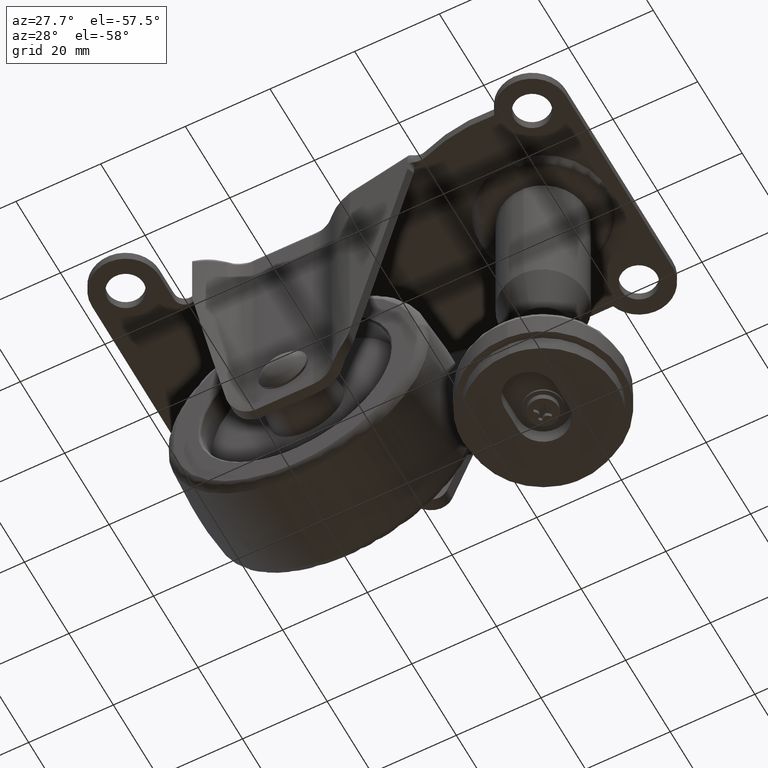
[diagram: clean part render]
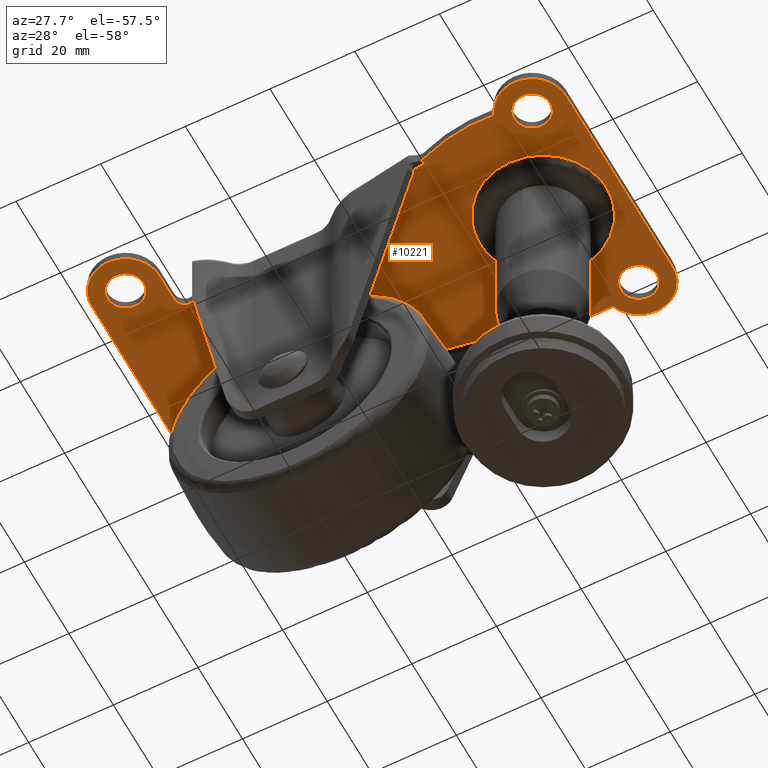
[diagram: same view with one face highlighted and labeled with its STEP entity id]
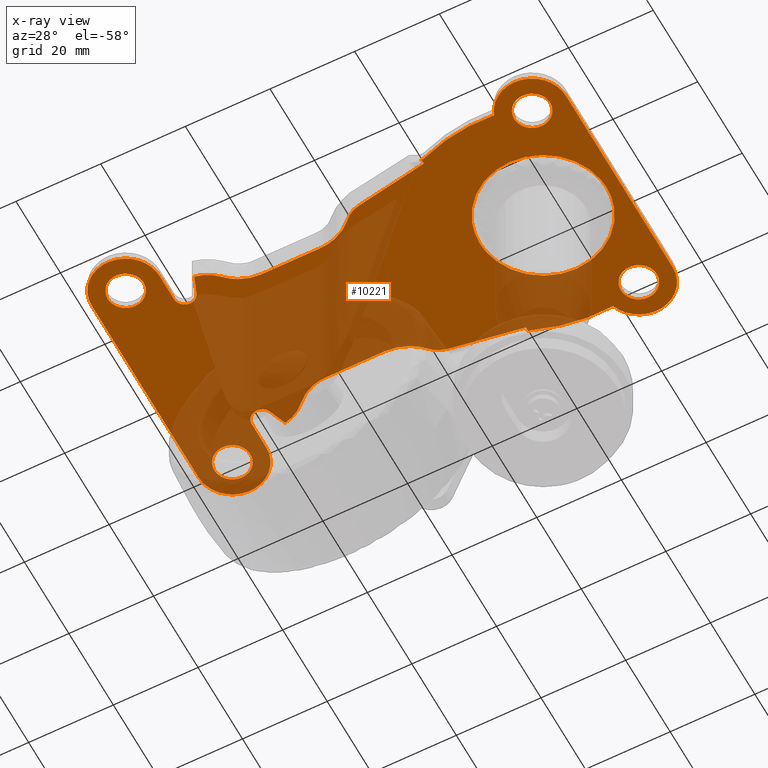
[diagram: x-ray of the same camera — body ghosted, the highlighted face saturated]
A machine part, auxiliary view. The second image highlights one B-rep face of the part: STEP entity #10221.
The next image is the same camera in x-ray: the body ghosted, the highlighted face saturated — about 45% of this face is hidden behind the body in this view.
In plain terms, the highlighted face is a freeform B-spline surface patch.
Its self-contained STEP definition (entity closure, byte-faithful):
#7500=CARTESIAN_POINT('',(-33.740544805826559,28.242076960500931,47.200004000000000));
#7501=VERTEX_POINT('',#7500);
#7507=CARTESIAN_POINT('',(-29.750000000000000,24.000003999999748,47.200004000000000));
#7508=VERTEX_POINT('',#7507);
#7509=CARTESIAN_POINT('',(-29.750000000000000,24.000003999999748,47.200004000000000));
#7510=CARTESIAN_POINT('',(-29.750000000000004,27.998005821910553,47.200003999999986));
#7511=CARTESIAN_POINT('',(-33.740544805826545,28.242076960501073,47.200004000000000));
#7519=(BOUNDED_CURVE()B_SPLINE_CURVE(2,(#7509,#7510,#7511),.UNSPECIFIED.,.F.,.U.)B_SPLINE_CURVE_WITH_KNOTS((3,3),(0.500000000000000,0.739333006937805),.UNSPECIFIED.)CURVE()GEOMETRIC_REPRESENTATION_ITEM()RATIONAL_B_SPLINE_CURVE((1.0,0.719603940918736,0.976072137464906))REPRESENTATION_ITEM(''));
#7520=EDGE_CURVE('',#7508,#7501,#7519,.T.);
#7522=CARTESIAN_POINT('',(-34.259455194173441,19.757931039498580,47.200004000000000));
#7523=VERTEX_POINT('',#7522);
#7524=CARTESIAN_POINT('',(-34.259455194173448,19.757931039498580,47.200004000000000));
#7525=CARTESIAN_POINT('',(-34.129848693053631,19.750003999999752,47.200004000000000));
#7526=CARTESIAN_POINT('',(-34.0,19.750003999999748,47.200004000000000));
#7527=CARTESIAN_POINT('',(-29.750000000000004,19.750003999999745,47.200003999999986));
#7528=CARTESIAN_POINT('',(-29.750000000000000,24.000003999999748,47.200004000000000));
#7536=(BOUNDED_CURVE()B_SPLINE_CURVE(2,(#7524,#7525,#7526,#7527,#7528),.UNSPECIFIED.,.F.,.U.)B_SPLINE_CURVE_WITH_KNOTS((3,2,3),(0.239333006937805,0.250000000000000,0.500000000000000),.UNSPECIFIED.)CURVE()GEOMETRIC_REPRESENTATION_ITEM()RATIONAL_B_SPLINE_CURVE((0.976072137464906,0.987502840267811,1.0,0.707106781186548,1.0))REPRESENTATION_ITEM(''));
#7537=EDGE_CURVE('',#7523,#7508,#7536,.T.);
#7581=CARTESIAN_POINT('',(-38.250000000000007,24.000003999999748,47.200004000000000));
#7582=VERTEX_POINT('',#7581);
#7583=CARTESIAN_POINT('',(-38.250000000000007,24.000003999999748,47.200004000000000));
#7584=CARTESIAN_POINT('',(-38.249999999999993,20.002002178088944,47.200003999999979));
#7585=CARTESIAN_POINT('',(-34.259455194173434,19.757931039498434,47.200004000000000));
#7593=(BOUNDED_CURVE()B_SPLINE_CURVE(2,(#7583,#7584,#7585),.UNSPECIFIED.,.F.,.U.)B_SPLINE_CURVE_WITH_KNOTS((3,3),(0.0,0.239333006937805),.UNSPECIFIED.)CURVE()GEOMETRIC_REPRESENTATION_ITEM()RATIONAL_B_SPLINE_CURVE((1.0,0.719603940918736,0.976072137464906))REPRESENTATION_ITEM(''));
#7594=EDGE_CURVE('',#7582,#7523,#7593,.T.);
#7596=CARTESIAN_POINT('',(-33.740544805826552,28.242076960500924,47.200004000000007));
#7597=CARTESIAN_POINT('',(-33.870151306946376,28.250003999999752,47.200004000000007));
#7598=CARTESIAN_POINT('',(-34.0,28.250003999999748,47.200004000000000));
#7599=CARTESIAN_POINT('',(-38.250000000000007,28.250003999999752,47.200003999999986));
#7600=CARTESIAN_POINT('',(-38.250000000000007,24.000003999999748,47.200004000000000));
#7608=(BOUNDED_CURVE()B_SPLINE_CURVE(2,(#7596,#7597,#7598,#7599,#7600),.UNSPECIFIED.,.F.,.U.)B_SPLINE_CURVE_WITH_KNOTS((3,2,3),(0.739333006937804,0.750000000000000,1.0),.UNSPECIFIED.)CURVE()GEOMETRIC_REPRESENTATION_ITEM()RATIONAL_B_SPLINE_CURVE((0.976072137464906,0.987502840267811,1.0,0.707106781186548,1.0))REPRESENTATION_ITEM(''));
#7609=EDGE_CURVE('',#7501,#7582,#7608,.T.);
#7682=CARTESIAN_POINT('',(-33.740544805826559,-19.757927039498821,47.200004000000000));
#7683=VERTEX_POINT('',#7682);
#7689=CARTESIAN_POINT('',(-29.750000000000000,-24.0,47.200004000000000));
#7690=VERTEX_POINT('',#7689);
#7691=CARTESIAN_POINT('',(-29.750000000000000,-24.0,47.200004000000000));
#7692=CARTESIAN_POINT('',(-29.750000000000004,-20.001998178089195,47.200003999999986));
#7693=CARTESIAN_POINT('',(-33.740544805826545,-19.757927039498686,47.200004000000000));
#7701=(BOUNDED_CURVE()B_SPLINE_CURVE(2,(#7691,#7692,#7693),.UNSPECIFIED.,.F.,.U.)B_SPLINE_CURVE_WITH_KNOTS((3,3),(0.500000000000000,0.739333006937805),.UNSPECIFIED.)CURVE()GEOMETRIC_REPRESENTATION_ITEM()RATIONAL_B_SPLINE_CURVE((1.0,0.719603940918736,0.976072137464906))REPRESENTATION_ITEM(''));
#7702=EDGE_CURVE('',#7690,#7683,#7701,.T.);
#7704=CARTESIAN_POINT('',(-34.259455194173441,-28.242072960501179,47.200004000000000));
#7705=VERTEX_POINT('',#7704);
#7706=CARTESIAN_POINT('',(-34.259455194173448,-28.242072960501179,47.200004000000000));
#7707=CARTESIAN_POINT('',(-34.129848693053631,-28.250000000000000,47.200004000000000));
#7708=CARTESIAN_POINT('',(-34.0,-28.250000000000000,47.200004000000000));
#7709=CARTESIAN_POINT('',(-29.750000000000004,-28.250000000000000,47.200003999999986));
#7710=CARTESIAN_POINT('',(-29.750000000000000,-24.0,47.200004000000000));
#7718=(BOUNDED_CURVE()B_SPLINE_CURVE(2,(#7706,#7707,#7708,#7709,#7710),.UNSPECIFIED.,.F.,.U.)B_SPLINE_CURVE_WITH_KNOTS((3,2,3),(0.239333006937805,0.250000000000000,0.500000000000000),.UNSPECIFIED.)CURVE()GEOMETRIC_REPRESENTATION_ITEM()RATIONAL_B_SPLINE_CURVE((0.976072137464906,0.987502840267811,1.0,0.707106781186548,1.0))REPRESENTATION_ITEM(''));
#7719=EDGE_CURVE('',#7705,#7690,#7718,.T.);
#7763=CARTESIAN_POINT('',(-38.250000000000007,-24.0,47.200004000000000));
#7764=VERTEX_POINT('',#7763);
#7765=CARTESIAN_POINT('',(-38.250000000000007,-24.0,47.200004000000000));
#7766=CARTESIAN_POINT('',(-38.249999999999993,-27.998001821910815,47.200003999999979));
#7767=CARTESIAN_POINT('',(-34.259455194173434,-28.242072960501311,47.200004000000000));
#7775=(BOUNDED_CURVE()B_SPLINE_CURVE(2,(#7765,#7766,#7767),.UNSPECIFIED.,.F.,.U.)B_SPLINE_CURVE_WITH_KNOTS((3,3),(0.0,0.239333006937805),.UNSPECIFIED.)CURVE()GEOMETRIC_REPRESENTATION_ITEM()RATIONAL_B_SPLINE_CURVE((1.0,0.719603940918736,0.976072137464906))REPRESENTATION_ITEM(''));
#7776=EDGE_CURVE('',#7764,#7705,#7775,.T.);
#7778=CARTESIAN_POINT('',(-33.740544805826552,-19.757927039498824,47.200004000000007));
#7779=CARTESIAN_POINT('',(-33.870151306946376,-19.750000000000004,47.200004000000007));
#7780=CARTESIAN_POINT('',(-34.0,-19.750000000000000,47.200004000000000));
#7781=CARTESIAN_POINT('',(-38.250000000000007,-19.749999999999993,47.200003999999986));
#7782=CARTESIAN_POINT('',(-38.250000000000007,-24.0,47.200004000000000));
#7790=(BOUNDED_CURVE()B_SPLINE_CURVE(2,(#7778,#7779,#7780,#7781,#7782),.UNSPECIFIED.,.F.,.U.)B_SPLINE_CURVE_WITH_KNOTS((3,2,3),(0.739333006937804,0.750000000000000,1.0),.UNSPECIFIED.)CURVE()GEOMETRIC_REPRESENTATION_ITEM()RATIONAL_B_SPLINE_CURVE((0.976072137464906,0.987502840267811,1.0,0.707106781186548,1.0))REPRESENTATION_ITEM(''));
#7791=EDGE_CURVE('',#7683,#7764,#7790,.T.);
#7864=CARTESIAN_POINT('',(62.259455194173441,-19.757927039498821,47.200004000000000));
#7865=VERTEX_POINT('',#7864);
#7871=CARTESIAN_POINT('',(66.250000000000000,-24.0,47.200004000000000));
#7872=VERTEX_POINT('',#7871);
#7873=CARTESIAN_POINT('',(66.250000000000000,-24.0,47.200004000000000));
#7874=CARTESIAN_POINT('',(66.250000000000000,-20.001998178089188,47.200004000000000));
#7875=CARTESIAN_POINT('',(62.259455194173462,-19.757927039498686,47.200004000000000));
#7883=(BOUNDED_CURVE()B_SPLINE_CURVE(2,(#7873,#7874,#7875),.UNSPECIFIED.,.F.,.U.)B_SPLINE_CURVE_WITH_KNOTS((3,3),(0.500000000000000,0.739333006937804),.UNSPECIFIED.)CURVE()GEOMETRIC_REPRESENTATION_ITEM()RATIONAL_B_SPLINE_CURVE((1.0,0.719603940918737,0.976072137464905))REPRESENTATION_ITEM(''));
#7884=EDGE_CURVE('',#7872,#7865,#7883,.T.);
#7886=CARTESIAN_POINT('',(61.740544805826559,-28.242072960501179,47.200004000000000));
#7887=VERTEX_POINT('',#7886);
#7888=CARTESIAN_POINT('',(61.740544805826559,-28.242072960501176,47.200004000000000));
#7889=CARTESIAN_POINT('',(61.870151306946369,-28.249999999999996,47.200004000000000));
#7890=CARTESIAN_POINT('',(62.0,-28.250000000000000,47.200004000000000));
#7891=CARTESIAN_POINT('',(66.250000000000014,-28.250000000000000,47.200003999999986));
#7892=CARTESIAN_POINT('',(66.250000000000000,-24.0,47.200004000000000));
#7900=(BOUNDED_CURVE()B_SPLINE_CURVE(2,(#7888,#7889,#7890,#7891,#7892),.UNSPECIFIED.,.F.,.U.)B_SPLINE_CURVE_WITH_KNOTS((3,2,3),(0.239333006937804,0.250000000000000,0.500000000000000),.UNSPECIFIED.)CURVE()GEOMETRIC_REPRESENTATION_ITEM()RATIONAL_B_SPLINE_CURVE((0.976072137464905,0.987502840267811,1.0,0.707106781186548,1.0))REPRESENTATION_ITEM(''));
#7901=EDGE_CURVE('',#7887,#7872,#7900,.T.);
#7945=CARTESIAN_POINT('',(57.749999999999993,-24.0,47.200004000000000));
#7946=VERTEX_POINT('',#7945);
#7947=CARTESIAN_POINT('',(57.749999999999993,-24.0,47.200004000000000));
#7948=CARTESIAN_POINT('',(57.749999999999986,-27.998001821910819,47.200003999999986));
#7949=CARTESIAN_POINT('',(61.740544805826545,-28.242072960501314,47.200004000000000));
#7957=(BOUNDED_CURVE()B_SPLINE_CURVE(2,(#7947,#7948,#7949),.UNSPECIFIED.,.F.,.U.)B_SPLINE_CURVE_WITH_KNOTS((3,3),(0.0,0.239333006937805),.UNSPECIFIED.)CURVE()GEOMETRIC_REPRESENTATION_ITEM()RATIONAL_B_SPLINE_CURVE((1.0,0.719603940918736,0.976072137464906))REPRESENTATION_ITEM(''));
#7958=EDGE_CURVE('',#7946,#7887,#7957,.T.);
#7960=CARTESIAN_POINT('',(62.259455194173441,-19.757927039498824,47.200004000000000));
#7961=CARTESIAN_POINT('',(62.129848693053631,-19.749999999999996,47.200004000000000));
#7962=CARTESIAN_POINT('',(62.0,-19.750000000000000,47.200004000000000));
#7963=CARTESIAN_POINT('',(57.750000000000000,-19.749999999999993,47.200003999999986));
#7964=CARTESIAN_POINT('',(57.749999999999993,-24.0,47.200004000000000));
#7972=(BOUNDED_CURVE()B_SPLINE_CURVE(2,(#7960,#7961,#7962,#7963,#7964),.UNSPECIFIED.,.F.,.U.)B_SPLINE_CURVE_WITH_KNOTS((3,2,3),(0.739333006937804,0.750000000000000,1.0),.UNSPECIFIED.)CURVE()GEOMETRIC_REPRESENTATION_ITEM()RATIONAL_B_SPLINE_CURVE((0.976072137464905,0.987502840267811,1.0,0.707106781186548,1.0))REPRESENTATION_ITEM(''));
#7973=EDGE_CURVE('',#7865,#7946,#7972,.T.);
#8046=CARTESIAN_POINT('',(62.259455194173441,28.242076960500931,47.200004000000000));
#8047=VERTEX_POINT('',#8046);
#8053=CARTESIAN_POINT('',(66.250000000000000,24.000003999999748,47.200004000000000));
#8054=VERTEX_POINT('',#8053);
#8055=CARTESIAN_POINT('',(66.250000000000000,24.000003999999748,47.200004000000000));
#8056=CARTESIAN_POINT('',(66.250000000000000,27.998005821910560,47.200004000000000));
#8057=CARTESIAN_POINT('',(62.259455194173462,28.242076960501073,47.200004000000000));
#8065=(BOUNDED_CURVE()B_SPLINE_CURVE(2,(#8055,#8056,#8057),.UNSPECIFIED.,.F.,.U.)B_SPLINE_CURVE_WITH_KNOTS((3,3),(0.500000000000000,0.739333006937804),.UNSPECIFIED.)CURVE()GEOMETRIC_REPRESENTATION_ITEM()RATIONAL_B_SPLINE_CURVE((1.0,0.719603940918737,0.976072137464905))REPRESENTATION_ITEM(''));
#8066=EDGE_CURVE('',#8054,#8047,#8065,.T.);
#8068=CARTESIAN_POINT('',(61.740544805826559,19.757931039498569,47.200004000000000));
#8069=VERTEX_POINT('',#8068);
#8070=CARTESIAN_POINT('',(61.740544805826559,19.757931039498569,47.200004000000000));
#8071=CARTESIAN_POINT('',(61.870151306946376,19.750003999999752,47.200003999999993));
#8072=CARTESIAN_POINT('',(62.0,19.750003999999748,47.200004000000000));
#8073=CARTESIAN_POINT('',(66.250000000000014,19.750003999999745,47.200003999999986));
#8074=CARTESIAN_POINT('',(66.250000000000000,24.000003999999748,47.200004000000000));
#8082=(BOUNDED_CURVE()B_SPLINE_CURVE(2,(#8070,#8071,#8072,#8073,#8074),.UNSPECIFIED.,.F.,.U.)B_SPLINE_CURVE_WITH_KNOTS((3,2,3),(0.239333006937805,0.250000000000000,0.500000000000000),.UNSPECIFIED.)CURVE()GEOMETRIC_REPRESENTATION_ITEM()RATIONAL_B_SPLINE_CURVE((0.976072137464906,0.987502840267811,1.0,0.707106781186548,1.0))REPRESENTATION_ITEM(''));
#8083=EDGE_CURVE('',#8069,#8054,#8082,.T.);
#8127=CARTESIAN_POINT('',(57.749999999999993,24.000003999999748,47.200004000000000));
#8128=VERTEX_POINT('',#8127);
#8129=CARTESIAN_POINT('',(57.749999999999993,24.000003999999748,47.200004000000000));
#8130=CARTESIAN_POINT('',(57.749999999999986,20.002002178088933,47.200003999999986));
#8131=CARTESIAN_POINT('',(61.740544805826545,19.757931039498430,47.200004000000000));
#8139=(BOUNDED_CURVE()B_SPLINE_CURVE(2,(#8129,#8130,#8131),.UNSPECIFIED.,.F.,.U.)B_SPLINE_CURVE_WITH_KNOTS((3,3),(0.0,0.239333006937805),.UNSPECIFIED.)CURVE()GEOMETRIC_REPRESENTATION_ITEM()RATIONAL_B_SPLINE_CURVE((1.0,0.719603940918736,0.976072137464906))REPRESENTATION_ITEM(''));
#8140=EDGE_CURVE('',#8128,#8069,#8139,.T.);
#8142=CARTESIAN_POINT('',(62.259455194173441,28.242076960500928,47.200004000000000));
#8143=CARTESIAN_POINT('',(62.129848693053631,28.250003999999748,47.200004000000000));
#8144=CARTESIAN_POINT('',(62.0,28.250003999999748,47.200004000000000));
#8145=CARTESIAN_POINT('',(57.750000000000000,28.250003999999752,47.200003999999986));
#8146=CARTESIAN_POINT('',(57.749999999999993,24.000003999999748,47.200004000000000));
#8154=(BOUNDED_CURVE()B_SPLINE_CURVE(2,(#8142,#8143,#8144,#8145,#8146),.UNSPECIFIED.,.F.,.U.)B_SPLINE_CURVE_WITH_KNOTS((3,2,3),(0.739333006937804,0.750000000000000,1.0),.UNSPECIFIED.)CURVE()GEOMETRIC_REPRESENTATION_ITEM()RATIONAL_B_SPLINE_CURVE((0.976072137464905,0.987502840267811,1.0,0.707106781186548,1.0))REPRESENTATION_ITEM(''));
#8155=EDGE_CURVE('',#8047,#8128,#8154,.T.);
#8555=CARTESIAN_POINT('',(66.821360763806524,-2.061975152917993,47.200003999505327));
#8556=VERTEX_POINT('',#8555);
#8570=CARTESIAN_POINT('',(37.034922384915284,0.0,47.200003999631981));
#8571=VERTEX_POINT('',#8570);
#8572=CARTESIAN_POINT('',(66.821360763806524,-2.061975152917993,47.200003999505327));
#8573=CARTESIAN_POINT('',(66.716573481590842,-2.815473680348533,47.200003999505533));
#8574=CARTESIAN_POINT('',(66.379228191747103,-4.363811458256979,47.200003999506578));
#8575=CARTESIAN_POINT('',(65.395457878934522,-6.879362204719113,47.200003999509939));
#8576=CARTESIAN_POINT('',(63.815468189623388,-9.363807041012141,47.200003999515843));
#8577=CARTESIAN_POINT('',(61.669737838083833,-11.543016850422919,47.200003999524611));
#8578=CARTESIAN_POINT('',(59.291970104816919,-13.168367899267141,47.200003999533173));
#8579=CARTESIAN_POINT('',(56.760354001727571,-14.274324960216850,47.200003999544620));
#8580=CARTESIAN_POINT('',(53.900373144664272,-14.944205682777520,47.200003999555769));
#8581=CARTESIAN_POINT('',(51.251880920938810,-15.025256533162059,47.200003999569923));
#8582=CARTESIAN_POINT('',(48.408646106143181,-14.609037922086660,47.200003999577298));
#8583=CARTESIAN_POINT('',(45.838559189154672,-13.753542513920980,47.200003999594323));
#8584=CARTESIAN_POINT('',(43.551989669438292,-12.423836584856650,47.200003999596390));
#8585=CARTESIAN_POINT('',(41.727437986075437,-10.950886580195510,47.200003999613983));
#8586=CARTESIAN_POINT('',(40.365375193238492,-9.491259931884246,47.200003999612683));
#8587=CARTESIAN_POINT('',(39.189905945890018,-7.809574870583597,47.200003999621053));
#8588=CARTESIAN_POINT('',(38.284470947771283,-6.099225631138470,47.200003999624862));
#8589=CARTESIAN_POINT('',(37.657535999400643,-4.392057832103464,47.200003999628088));
#8590=CARTESIAN_POINT('',(37.167194189685667,-2.340773465188086,47.200003999630709));
#8591=CARTESIAN_POINT('',(37.034816968151013,-0.936336539388799,47.200003999631789));
#8592=CARTESIAN_POINT('',(37.034922384915284,0.0,47.200003999631981));
#8593=B_SPLINE_CURVE_WITH_KNOTS('',3,(#8572,#8573,#8574,#8575,#8576,#8577,#8578,#8579,#8580,#8581,#8582,#8583,#8584,#8585,#8586,#8587,#8588,#8589,#8590,#8591,#8592),.UNSPECIFIED.,.F.,.U.,(4,1,1,1,1,1,1,1,1,1,1,1,1,1,1,1,1,1,4),(0.000000207381191,2.282261561499681,4.740224506314114,8.075934968127100,11.060536377683530,13.869583433542180,16.678628626038851,19.312061256861430,22.647666340031609,24.578857446537921,27.914613845285380,30.723675182799209,32.479307695015677,34.937223090339067,36.692872110792820,38.624075164741427,40.730866244472310,42.135351678908421,44.944346158811257),.UNSPECIFIED.);
#8594=EDGE_CURVE('',#8556,#8571,#8593,.T.);
#8596=CARTESIAN_POINT('',(37.177663235115361,2.061975153067978,47.200003999345199));
#8597=VERTEX_POINT('',#8596);
#8598=CARTESIAN_POINT('',(37.034922384915284,0.0,47.200003999631981));
#8599=CARTESIAN_POINT('',(37.034922385021900,1.035928215664708,47.200003999488708));
#8600=CARTESIAN_POINT('',(37.177663235115361,2.061975153067977,47.200003999345199));
#8608=(BOUNDED_CURVE()B_SPLINE_CURVE(2,(#8598,#8599,#8600),.UNSPECIFIED.,.F.,.U.)B_SPLINE_CURVE_WITH_KNOTS((3,3),(0.0,0.023792609111095),.UNSPECIFIED.)CURVE()GEOMETRIC_REPRESENTATION_ITEM()RATIONAL_B_SPLINE_CURVE((1.0,0.972125224533924,0.949556158161639))REPRESENTATION_ITEM(''));
#8609=EDGE_CURVE('',#8571,#8597,#8608,.T.);
#8654=CARTESIAN_POINT('',(66.964101612535032,0.0,47.200004000000000));
#8655=VERTEX_POINT('',#8654);
#8656=CARTESIAN_POINT('',(37.177663235115361,2.061975153067978,47.200003999345199));
#8657=CARTESIAN_POINT('',(37.266347414237039,2.699544253983253,47.200003999361392));
#8658=CARTESIAN_POINT('',(37.561551053435402,4.135589929388972,47.200003999398938));
#8659=CARTESIAN_POINT('',(38.265080178499602,6.066549914523831,47.200003999452768));
#8660=CARTESIAN_POINT('',(39.231097140819237,7.876697097231938,47.200003999506777));
#8661=CARTESIAN_POINT('',(40.513759019242947,9.698995621103068,47.200003999564757));
#8662=CARTESIAN_POINT('',(42.411725418459639,11.626929565459321,47.200003999632017));
#8663=CARTESIAN_POINT('',(44.713346738004212,13.160758396764040,47.200003999693656));
#8664=CARTESIAN_POINT('',(47.025078372610409,14.170589773646160,47.200003999746677));
#8665=CARTESIAN_POINT('',(49.290622913308297,14.786031348027080,47.200003999784023));
#8666=CARTESIAN_POINT('',(52.037672616486830,15.064617956051260,47.200003999820908));
#8667=CARTESIAN_POINT('',(54.909010087904953,14.780938915608949,47.200003999852342));
#8668=CARTESIAN_POINT('',(57.829383172716270,13.884350287864210,47.200003999885780));
#8669=CARTESIAN_POINT('',(60.371673868080670,12.523558100418850,47.200003999916063));
#8670=CARTESIAN_POINT('',(62.545995730435777,10.725570934067930,47.200003999941821));
#8671=CARTESIAN_POINT('',(64.218130295653225,8.756023509058377,47.200003999962163));
#8672=CARTESIAN_POINT('',(65.394823793644960,6.791414210676837,47.200003999977064));
#8673=CARTESIAN_POINT('',(66.225786905834610,4.787049224231346,47.200003999987871));
#8674=CARTESIAN_POINT('',(66.809801985754078,2.574864453839370,47.200003999996291));
#8675=CARTESIAN_POINT('',(66.964198170285954,0.936331984007368,47.200003999999282));
#8676=CARTESIAN_POINT('',(66.964101612535032,0.0,47.200004000000000));
#8677=B_SPLINE_CURVE_WITH_KNOTS('',3,(#8656,#8657,#8658,#8659,#8660,#8661,#8662,#8663,#8664,#8665,#8666,#8667,#8668,#8669,#8670,#8671,#8672,#8673,#8674,#8675,#8676),.UNSPECIFIED.,.F.,.U.,(4,1,1,1,1,1,1,1,1,1,1,1,1,1,1,1,1,1,4),(0.000000207380602,1.931136546838935,4.389081064387469,6.144704722031605,8.075934967781855,11.060536377211321,14.220716048155650,16.327498369601820,18.609835340185580,21.243286623861788,24.578857445490691,27.212379231600121,30.372538432228438,33.181570362115103,35.639488460530551,38.097370001445292,40.028607879914063,42.135351677118052,44.944346156901609),.UNSPECIFIED.);
#8678=EDGE_CURVE('',#8597,#8655,#8677,.T.);
#8680=CARTESIAN_POINT('',(66.964101612535032,0.0,47.200004000000000));
#8681=CARTESIAN_POINT('',(66.964101613144152,-1.035928215587545,47.200003999752667));
#8682=CARTESIAN_POINT('',(66.821360763806524,-2.061975152917993,47.200003999505334));
#8690=(BOUNDED_CURVE()B_SPLINE_CURVE(2,(#8680,#8681,#8682),.UNSPECIFIED.,.F.,.U.)B_SPLINE_CURVE_WITH_KNOTS((3,3),(0.500000000000000,0.523792609107698),.UNSPECIFIED.)CURVE()GEOMETRIC_REPRESENTATION_ITEM()RATIONAL_B_SPLINE_CURVE((1.0,0.972125224537905,0.949556158168085))REPRESENTATION_ITEM(''));
#8691=EDGE_CURVE('',#8655,#8556,#8690,.T.);
#8857=CARTESIAN_POINT('',(7.0,14.449999999999999,47.200004000000000));
#8858=VERTEX_POINT('',#8857);
#8887=CARTESIAN_POINT('',(15.251488896673051,18.029706547800050,47.200004000000000));
#8888=VERTEX_POINT('',#8887);
#8902=CARTESIAN_POINT('',(7.0,14.449999999999999,47.200004000000000));
#8903=CARTESIAN_POINT('',(11.902228494356942,14.449999999999999,47.200004000000000));
#8904=CARTESIAN_POINT('',(15.251488896673051,18.029706547800050,47.200004000000000));
#8912=(BOUNDED_CURVE()B_SPLINE_CURVE(2,(#8902,#8903,#8904),.UNSPECIFIED.,.F.,.U.)CURVE()GEOMETRIC_REPRESENTATION_ITEM()QUASI_UNIFORM_CURVE()RATIONAL_B_SPLINE_CURVE((1.0,0.917390813647379,1.0))REPRESENTATION_ITEM(''));
#8913=EDGE_CURVE('',#8858,#8888,#8912,.T.);
#8932=CARTESIAN_POINT('',(-7.0,14.449999999999999,47.200004000000000));
#8933=VERTEX_POINT('',#8932);
#8949=CARTESIAN_POINT('',(-7.0,14.449999999999999,47.200004000000000));
#8950=CARTESIAN_POINT('',(7.0,14.449999999999999,47.200004000000000));
#8951=QUASI_UNIFORM_CURVE('',1,(#8949,#8950),.UNSPECIFIED.,.F.,.U.);
#8952=EDGE_CURVE('',#8933,#8858,#8951,.T.);
#8974=CARTESIAN_POINT('',(-14.506526368076180,17.697196772937549,47.200004000000000));
#8975=VERTEX_POINT('',#8974);
#8991=CARTESIAN_POINT('',(-14.506526368076180,17.697196772937549,47.200004000000000));
#8992=CARTESIAN_POINT('',(-11.455603973216963,14.450000474093438,47.200004000000000));
#8993=CARTESIAN_POINT('',(-7.0,14.449999999999999,47.200004000000000));
#9001=(BOUNDED_CURVE()B_SPLINE_CURVE(2,(#8991,#8992,#8993),.UNSPECIFIED.,.F.,.U.)CURVE()GEOMETRIC_REPRESENTATION_ITEM()QUASI_UNIFORM_CURVE()RATIONAL_B_SPLINE_CURVE((1.0,0.917806697905850,1.0))REPRESENTATION_ITEM(''));
#9002=EDGE_CURVE('',#8975,#8933,#9001,.T.);
#9026=CARTESIAN_POINT('',(-19.692292139491649,20.471323584583399,47.200004000000000));
#9027=VERTEX_POINT('',#9026);
#9069=CARTESIAN_POINT('',(-19.692292139491659,20.471323584583370,47.200004000000000));
#9070=CARTESIAN_POINT('',(-16.631521290736568,19.958898415715741,47.200004000000007));
#9071=CARTESIAN_POINT('',(-14.506526368076200,17.697196772937531,47.200004000000000));
#9079=(BOUNDED_CURVE()B_SPLINE_CURVE(2,(#9069,#9070,#9071),.UNSPECIFIED.,.F.,.U.)CURVE()GEOMETRIC_REPRESENTATION_ITEM()QUASI_UNIFORM_CURVE()RATIONAL_B_SPLINE_CURVE((1.0,0.947543170837379,1.0))REPRESENTATION_ITEM(''));
#9080=EDGE_CURVE('',#9027,#8975,#9079,.T.);
#9552=CARTESIAN_POINT('',(-26.0,-17.500000000000000,47.200004000000000));
#9553=VERTEX_POINT('',#9552);
#9559=CARTESIAN_POINT('',(-21.163883833912351,-16.609740903700551,47.200004000000000));
#9560=VERTEX_POINT('',#9559);
#9561=CARTESIAN_POINT('',(-21.163883833912351,-16.609740903700551,47.200004000000000));
#9562=CARTESIAN_POINT('',(-21.247526184643259,-16.390070301869979,47.200004000000057));
#9563=CARTESIAN_POINT('',(-21.495033304102940,-15.942564666094340,47.200003999999893));
#9564=CARTESIAN_POINT('',(-22.012019974785090,-15.449249305882580,47.200004000000021));
#9565=CARTESIAN_POINT('',(-22.561456202946019,-15.163583539507551,47.200003999999957));
#9566=CARTESIAN_POINT('',(-23.173117424275219,-14.991716466960600,47.200004000000099));
#9567=CARTESIAN_POINT('',(-23.797094336733270,-14.983489105420000,47.200003999999957));
#9568=CARTESIAN_POINT('',(-24.463472737711431,-15.167223565549889,47.200004000000007));
#9569=CARTESIAN_POINT('',(-24.973461302543772,-15.450820573637870,47.200004000000007));
#9570=CARTESIAN_POINT('',(-25.400838938172161,-15.846004334783521,47.200003999999822));
#9571=CARTESIAN_POINT('',(-25.691586696354729,-16.264180284751109,47.200004000000021));
#9572=CARTESIAN_POINT('',(-25.931609134672890,-16.812978854432551,47.200003999999971));
#9573=CARTESIAN_POINT('',(-26.000179710813939,-17.228748416266580,47.200003999999460));
#9574=CARTESIAN_POINT('',(-26.0,-17.500000000000000,47.200004000000000));
#9575=B_SPLINE_CURVE_WITH_KNOTS('',3,(#9561,#9562,#9563,#9564,#9565,#9566,#9567,#9568,#9569,#9570,#9571,#9572,#9573,#9574),.UNSPECIFIED.,.F.,.U.,(4,1,1,1,1,1,1,1,1,1,1,4),(0.000000524331481,0.705181245360532,1.518965700303189,2.115737097673299,2.549751154916499,3.417734360846204,3.960158597742965,4.611163811035361,5.153659444747113,5.696180811339513,6.130193261258286,6.943880681588392),.UNSPECIFIED.);
#9576=EDGE_CURVE('',#9560,#9553,#9575,.T.);
#9598=CARTESIAN_POINT('',(-26.0,-24.0,47.200004000000000));
#9599=VERTEX_POINT('',#9598);
#9605=CARTESIAN_POINT('',(-26.0,-24.0,47.200004000000000));
#9606=CARTESIAN_POINT('',(-26.0,-17.500000000000000,47.200004000000000));
#9607=QUASI_UNIFORM_CURVE('',1,(#9605,#9606),.UNSPECIFIED.,.F.,.U.);
#9608=EDGE_CURVE('',#9599,#9553,#9607,.T.);
#9655=CARTESIAN_POINT('',(-42.0,-24.0,47.200004000000000));
#9656=VERTEX_POINT('',#9655);
#9662=CARTESIAN_POINT('',(-42.0,-24.0,47.200004000000000));
#9663=CARTESIAN_POINT('',(-42.000005489828361,-24.392695682631999,47.200004000000007));
#9664=CARTESIAN_POINT('',(-41.930050010121263,-25.341711490420622,47.200003999999943));
#9665=CARTESIAN_POINT('',(-41.586059797136791,-26.680127275298279,47.200004000000042));
#9666=CARTESIAN_POINT('',(-40.879580257488477,-28.198124345496069,47.200003999999993));
#9667=CARTESIAN_POINT('',(-39.888674738023191,-29.517248589986782,47.200003999999701));
#9668=CARTESIAN_POINT('',(-38.580173310871913,-30.618067513728459,47.200004000000483));
#9669=CARTESIAN_POINT('',(-37.288959834894300,-31.339090357083361,47.200003999999581));
#9670=CARTESIAN_POINT('',(-36.139749903895449,-31.734404606956680,47.200003999999971));
#9671=CARTESIAN_POINT('',(-34.918650828766012,-31.977300429724622,47.200004000000298));
#9672=CARTESIAN_POINT('',(-33.539276876591977,-32.045172001728560,47.200003999998764));
#9673=CARTESIAN_POINT('',(-31.978961366180481,-31.794085795892919,47.200004000000241));
#9674=CARTESIAN_POINT('',(-30.593519742992509,-31.279027153061389,47.200004000000362));
#9675=CARTESIAN_POINT('',(-29.312581796132701,-30.543012789506282,47.200003999999133));
#9676=CARTESIAN_POINT('',(-27.990999996135638,-29.403367216893301,47.200004000000767));
#9677=CARTESIAN_POINT('',(-26.964321953903330,-27.945301918925061,47.200003999999460));
#9678=CARTESIAN_POINT('',(-26.197540663244659,-26.094154161138210,47.200004000001080));
#9679=CARTESIAN_POINT('',(-25.999618090663159,-24.818173525483282,47.200003999998302));
#9680=CARTESIAN_POINT('',(-26.0,-24.0,47.200004000000000));
#9681=B_SPLINE_CURVE_WITH_KNOTS('',3,(#9662,#9663,#9664,#9665,#9666,#9667,#9668,#9669,#9670,#9671,#9672,#9673,#9674,#9675,#9676,#9677,#9678,#9679,#9680),.UNSPECIFIED.,.F.,.U.,(4,1,1,1,1,1,1,1,1,1,1,1,1,1,1,1,4),(0.000000307226401,1.178101879143885,2.847027524163931,4.123356822042073,6.185051127016493,7.755860428776707,9.228506179924745,10.602994597319499,11.388376443453341,12.959078918306560,14.726238958251921,16.100743769059051,17.377018858090260,19.144207333954689,21.304104256176799,22.678526057865959,25.132898926125250),.UNSPECIFIED.);
#9682=EDGE_CURVE('',#9656,#9599,#9681,.T.);
#9700=CARTESIAN_POINT('',(-42.0,24.000003999999748,47.200004000000000));
#9701=VERTEX_POINT('',#9700);
#9707=CARTESIAN_POINT('',(-42.0,24.000003999999748,47.200004000000000));
#9708=CARTESIAN_POINT('',(-42.0,-24.0,47.200004000000000));
#9709=QUASI_UNIFORM_CURVE('',1,(#9707,#9708),.UNSPECIFIED.,.F.,.U.);
#9710=EDGE_CURVE('',#9701,#9656,#9709,.T.);
#9758=CARTESIAN_POINT('',(-26.0,24.000003999999748,47.200004000000000));
#9759=VERTEX_POINT('',#9758);
#9765=CARTESIAN_POINT('',(-26.0,24.000003999999748,47.200004000000000));
#9766=CARTESIAN_POINT('',(-25.999940658759911,24.523601673917870,47.200003999999922));
#9767=CARTESIAN_POINT('',(-26.106367368061079,25.603493096045110,47.200004000000142));
#9768=CARTESIAN_POINT('',(-26.554585871111289,27.049137464113290,47.200004000000007));
#9769=CARTESIAN_POINT('',(-27.319425099755389,28.501585136494761,47.200003999999971));
#9770=CARTESIAN_POINT('',(-28.281610424094559,29.673971857834740,47.200004000000057));
#9771=CARTESIAN_POINT('',(-29.607911411148962,30.748868620209571,47.200003999999787));
#9772=CARTESIAN_POINT('',(-30.948881647044342,31.455095595000561,47.200004000000362));
#9773=CARTESIAN_POINT('',(-32.526216611585433,31.912452169955710,47.200003999999772));
#9774=CARTESIAN_POINT('',(-34.229924455451872,32.069831668481058,47.200003999999488));
#9775=CARTESIAN_POINT('',(-35.863352051819582,31.837843394783000,47.200004000000249));
#9776=CARTESIAN_POINT('',(-37.160932097459451,31.373297060866459,47.200003999999993));
#9777=CARTESIAN_POINT('',(-38.211591697358919,30.836380594903311,47.200004000000000));
#9778=CARTESIAN_POINT('',(-39.415641807559751,29.977585938064500,47.200003999999943));
#9779=CARTESIAN_POINT('',(-40.515993746287677,28.748287516840641,47.200004000000192));
#9780=CARTESIAN_POINT('',(-41.390279965447057,27.204980711499680,47.200003999999360));
#9781=CARTESIAN_POINT('',(-41.887214531665528,25.668952379083802,47.200004000001982));
#9782=CARTESIAN_POINT('',(-42.000053930174140,24.523598355710430,47.200003999997307));
#9783=CARTESIAN_POINT('',(-42.0,24.000003999999748,47.200004000000000));
#9784=B_SPLINE_CURVE_WITH_KNOTS('',3,(#9765,#9766,#9767,#9768,#9769,#9770,#9771,#9772,#9773,#9774,#9775,#9776,#9777,#9778,#9779,#9780,#9781,#9782,#9783),.UNSPECIFIED.,.F.,.U.,(4,1,1,1,1,1,1,1,1,1,1,1,1,1,1,1,4),(0.000000307229350,1.570795560372574,3.239734417247490,4.516068956505841,6.479582407136398,7.755860428774756,9.621211686842564,10.995670892871690,12.664575806226241,14.726238958249660,15.904361312244140,16.787990827612649,18.260619245891458,20.322318416333481,21.696811212150159,23.562108739014480,25.132898926124749),.UNSPECIFIED.);
#9785=EDGE_CURVE('',#9759,#9701,#9784,.T.);
#9803=CARTESIAN_POINT('',(-26.0,17.500000000000000,47.200004000000000));
#9804=VERTEX_POINT('',#9803);
#9810=CARTESIAN_POINT('',(-26.0,17.500000000000000,47.200004000000000));
#9811=CARTESIAN_POINT('',(-26.0,24.000003999999748,47.200004000000000));
#9812=QUASI_UNIFORM_CURVE('',1,(#9810,#9811),.UNSPECIFIED.,.F.,.U.);
#9813=EDGE_CURVE('',#9804,#9759,#9812,.T.);
#9855=CARTESIAN_POINT('',(-21.163883600843150,16.609741515294349,47.200004000000000));
#9856=VERTEX_POINT('',#9855);
#9862=CARTESIAN_POINT('',(-26.0,17.500000000000000,47.200004000000000));
#9863=CARTESIAN_POINT('',(-26.000089759439351,17.264934708878570,47.200003999999943));
#9864=CARTESIAN_POINT('',(-25.938342260534579,16.831005295236011,47.200004000000078));
#9865=CARTESIAN_POINT('',(-25.710616696086451,16.294564672381341,47.200004000000142));
#9866=CARTESIAN_POINT('',(-25.399732831239969,15.847464271877231,47.200003999999808));
#9867=CARTESIAN_POINT('',(-24.949722520523629,15.422069542231830,47.200004000000071));
#9868=CARTESIAN_POINT('',(-24.412046566782799,15.145551605792150,47.200004000000071));
#9869=CARTESIAN_POINT('',(-23.847819250992121,15.009835156977330,47.200003999999772));
#9870=CARTESIAN_POINT('',(-23.357387425397221,14.984331451288099,47.200004000000440));
#9871=CARTESIAN_POINT('',(-22.819115316787499,15.074033084311379,47.200003999999588));
#9872=CARTESIAN_POINT('',(-22.312755322029808,15.277529196112329,47.200004000000021));
#9873=CARTESIAN_POINT('',(-21.892162134449450,15.564761914119369,47.200004000000263));
#9874=CARTESIAN_POINT('',(-21.472439680366239,15.992110024500260,47.200003999999922));
#9875=CARTESIAN_POINT('',(-21.260310129799269,16.356207901694990,47.200004000000384));
#9876=CARTESIAN_POINT('',(-21.163883600843150,16.609741515294349,47.200004000000000));
#9877=B_SPLINE_CURVE_WITH_KNOTS('',3,(#9862,#9863,#9864,#9865,#9866,#9867,#9868,#9869,#9870,#9871,#9872,#9873,#9874,#9875,#9876),.UNSPECIFIED.,.F.,.U.,(4,1,1,1,1,1,1,1,1,1,1,1,4),(0.000000524337788,0.705181311828698,1.301955616158828,1.735973967766860,2.332744948536720,3.146473044559705,3.526140921085532,4.068622746864612,4.611164245683570,5.153659930538356,5.696181348275042,6.130193839103747,6.943881336125364),.UNSPECIFIED.);
#9878=EDGE_CURVE('',#9804,#9856,#9877,.T.);
#9934=CARTESIAN_POINT('',(-19.692292139491649,20.471323584583399,47.200004000000000));
#9935=CARTESIAN_POINT('',(-21.163883600843150,16.609741515294349,47.200004000000000));
#9936=QUASI_UNIFORM_CURVE('',1,(#9934,#9935),.UNSPECIFIED.,.F.,.U.);
#9937=EDGE_CURVE('',#9027,#9856,#9936,.T.);
#9943=CARTESIAN_POINT('',(-47.594399782922281,35.196804075755132,47.200004000000000));
#9944=CARTESIAN_POINT('',(75.594402786996369,35.196804075755132,47.200004000000000));
#9945=CARTESIAN_POINT('',(-47.594399782922281,-35.196801792369257,47.200004000000000));
#9946=CARTESIAN_POINT('',(75.594402786996369,-35.196801792369257,47.200004000000000));
#9947=B_SPLINE_SURFACE_WITH_KNOTS('',1,1,((#9943,#9945),(#9944,#9946)),.UNSPECIFIED.,.F.,.F.,.U.,(2,2),(2,2),(0.0,123.188802569918590),(0.0,70.393605868124382),.UNSPECIFIED.);
#9948=CARTESIAN_POINT('',(-7.0,-14.449999999999999,47.200004000000000));
#9949=VERTEX_POINT('',#9948);
#9950=CARTESIAN_POINT('',(-14.506528604252701,-17.697197130676599,47.200004000000000));
#9951=VERTEX_POINT('',#9950);
#9952=CARTESIAN_POINT('',(-7.0,-14.449999999999999,47.200004000000000));
#9953=CARTESIAN_POINT('',(-11.455605541424417,-14.449999999999996,47.200004000000000));
#9954=CARTESIAN_POINT('',(-14.506528604252690,-17.697197130676610,47.200004000000000));
#9962=(BOUNDED_CURVE()B_SPLINE_CURVE(2,(#9952,#9953,#9954),.UNSPECIFIED.,.F.,.U.)CURVE()GEOMETRIC_REPRESENTATION_ITEM()QUASI_UNIFORM_CURVE()RATIONAL_B_SPLINE_CURVE((1.0,0.917806663370003,1.0))REPRESENTATION_ITEM(''));
#9963=EDGE_CURVE('',#9949,#9951,#9962,.T.);
#9964=ORIENTED_EDGE('',*,*,#9963,.T.);
#9965=CARTESIAN_POINT('',(-19.692291545808050,-20.471323485190599,47.200004000000000));
#9966=VERTEX_POINT('',#9965);
#9967=CARTESIAN_POINT('',(-14.506528604252701,-17.697197130676599,47.200004000000000));
#9968=CARTESIAN_POINT('',(-16.631522549997896,-19.958897862090684,47.200004000000000));
#9969=CARTESIAN_POINT('',(-19.692291545808050,-20.471323485190599,47.200004000000000));
#9977=(BOUNDED_CURVE()B_SPLINE_CURVE(2,(#9967,#9968,#9969),.UNSPECIFIED.,.F.,.U.)CURVE()GEOMETRIC_REPRESENTATION_ITEM()QUASI_UNIFORM_CURVE()RATIONAL_B_SPLINE_CURVE((1.0,0.947543212421263,1.0))REPRESENTATION_ITEM(''));
#9978=EDGE_CURVE('',#9951,#9966,#9977,.T.);
#9979=ORIENTED_EDGE('',*,*,#9978,.T.);
#9980=CARTESIAN_POINT('',(-21.163883833912351,-16.609740903700551,47.200004000000000));
#9981=CARTESIAN_POINT('',(-19.692291545808050,-20.471323485190599,47.200004000000000));
#9982=QUASI_UNIFORM_CURVE('',1,(#9980,#9981),.UNSPECIFIED.,.F.,.U.);
#9983=EDGE_CURVE('',#9560,#9966,#9982,.T.);
#9984=ORIENTED_EDGE('',*,*,#9983,.F.);
#9985=ORIENTED_EDGE('',*,*,#9576,.T.);
#9986=ORIENTED_EDGE('',*,*,#9608,.F.);
#9987=ORIENTED_EDGE('',*,*,#9682,.F.);
#9988=ORIENTED_EDGE('',*,*,#9710,.F.);
#9989=ORIENTED_EDGE('',*,*,#9785,.F.);
#9990=ORIENTED_EDGE('',*,*,#9813,.F.);
#9991=ORIENTED_EDGE('',*,*,#9878,.T.);
#9992=ORIENTED_EDGE('',*,*,#9937,.F.);
#9993=ORIENTED_EDGE('',*,*,#9080,.T.);
#9994=ORIENTED_EDGE('',*,*,#9002,.T.);
#9995=ORIENTED_EDGE('',*,*,#8952,.T.);
#9996=ORIENTED_EDGE('',*,*,#8913,.T.);
#9997=CARTESIAN_POINT('',(19.075100208395401,20.066378090511751,47.200004000000000));
#9998=VERTEX_POINT('',#9997);
#9999=CARTESIAN_POINT('',(15.251488896673051,18.029706547800050,47.200004000000000));
#10000=CARTESIAN_POINT('',(16.815383323872069,19.701204039090097,47.200003999999986));
#10001=CARTESIAN_POINT('',(19.075100208395401,20.066378090511751,47.200004000000000));
#10009=(BOUNDED_CURVE()B_SPLINE_CURVE(2,(#9999,#10000,#10001),.UNSPECIFIED.,.F.,.U.)CURVE()GEOMETRIC_REPRESENTATION_ITEM()QUASI_UNIFORM_CURVE()RATIONAL_B_SPLINE_CURVE((1.0,0.946296821613483,1.0))REPRESENTATION_ITEM(''));
#10010=EDGE_CURVE('',#8888,#9998,#10009,.T.);
#10011=ORIENTED_EDGE('',*,*,#10010,.T.);
#10012=CARTESIAN_POINT('',(36.006003708469102,22.973128820060101,47.200004000000000));
#10013=VERTEX_POINT('',#10012);
#10014=CARTESIAN_POINT('',(19.075100208395401,20.066378090511751,47.200004000000000));
#10015=CARTESIAN_POINT('',(36.006003708469102,22.973128820060101,47.200004000000000));
#10016=QUASI_UNIFORM_CURVE('',1,(#10014,#10015),.UNSPECIFIED.,.F.,.U.);
#10017=EDGE_CURVE('',#9998,#10013,#10016,.T.);
#10018=ORIENTED_EDGE('',*,*,#10017,.T.);
#10019=CARTESIAN_POINT('',(35.829602418340997,24.000610533606100,47.200004000000000));
#10020=VERTEX_POINT('',#10019);
#10021=CARTESIAN_POINT('',(36.006003708469102,22.973128820060101,47.200004000000000));
#10022=CARTESIAN_POINT('',(35.829602418340997,24.000610533606100,47.200004000000000));
#10023=QUASI_UNIFORM_CURVE('',1,(#10021,#10022),.UNSPECIFIED.,.F.,.U.);
#10024=EDGE_CURVE('',#10013,#10020,#10023,.T.);
#10025=ORIENTED_EDGE('',*,*,#10024,.T.);
#10026=CARTESIAN_POINT('',(36.789500323926298,24.169415550753850,47.200004000000000));
#10027=VERTEX_POINT('',#10026);
#10028=CARTESIAN_POINT('',(35.829602418340997,24.000610533606100,47.200004000000000));
#10029=CARTESIAN_POINT('',(36.326325619590790,23.989629263441866,47.200004000000000));
#10030=CARTESIAN_POINT('',(36.789500323926298,24.169415550753850,47.200004000000000));
#10038=(BOUNDED_CURVE()B_SPLINE_CURVE(2,(#10028,#10029,#10030),.UNSPECIFIED.,.F.,.U.)CURVE()GEOMETRIC_REPRESENTATION_ITEM()QUASI_UNIFORM_CURVE()RATIONAL_B_SPLINE_CURVE((1.0,0.980818068742091,1.0))REPRESENTATION_ITEM(''));
#10039=EDGE_CURVE('',#10020,#10027,#10038,.T.);
#10040=ORIENTED_EDGE('',*,*,#10039,.T.);
#10041=CARTESIAN_POINT('',(54.487509881558999,26.750002585513251,47.200004000000000));
#10042=VERTEX_POINT('',#10041);
#10043=CARTESIAN_POINT('',(54.487509881558999,26.750002585513251,47.200004000000000));
#10044=CARTESIAN_POINT('',(45.342550325758381,27.489406342878926,47.200004000000000));
#10045=CARTESIAN_POINT('',(36.789500323926319,24.169415550753861,47.200004000000000));
#10053=(BOUNDED_CURVE()B_SPLINE_CURVE(2,(#10043,#10044,#10045),.UNSPECIFIED.,.F.,.U.)CURVE()GEOMETRIC_REPRESENTATION_ITEM()QUASI_UNIFORM_CURVE()RATIONAL_B_SPLINE_CURVE((1.0,0.974689134807848,1.0))REPRESENTATION_ITEM(''));
#10054=EDGE_CURVE('',#10042,#10027,#10053,.T.);
#10055=ORIENTED_EDGE('',*,*,#10054,.F.);
#10056=CARTESIAN_POINT('',(70.0,24.000003999999748,47.200004000000000));
#10057=VERTEX_POINT('',#10056);
#10058=CARTESIAN_POINT('',(70.0,24.000003999999748,47.200004000000000));
#10059=CARTESIAN_POINT('',(70.000079395987385,24.552310412886470,47.200003999999929));
#10060=CARTESIAN_POINT('',(69.903263912916501,25.482498538205050,47.200004000000114));
#10061=CARTESIAN_POINT('',(69.487466591334680,26.939781759758130,47.200004000000021));
#10062=CARTESIAN_POINT('',(68.905827513339105,28.120184075567991,47.200003999999957));
#10063=CARTESIAN_POINT('',(68.113788424321029,29.201166499448799,47.200004000000078));
#10064=CARTESIAN_POINT('',(67.278289274557380,30.056018911023571,47.200003999999893));
#10065=CARTESIAN_POINT('',(66.341612762452300,30.751567761363361,47.200004000000142));
#10066=CARTESIAN_POINT('',(65.215280668719387,31.362575563755719,47.200003999999851));
#10067=CARTESIAN_POINT('',(63.782843844643203,31.867768534284899,47.200004000000177));
#10068=CARTESIAN_POINT('',(62.182202222517901,32.053450592694887,47.200004000000007));
#10069=CARTESIAN_POINT('',(60.584652541909861,31.915331364612271,47.200003999999872));
#10070=CARTESIAN_POINT('',(59.399273326884419,31.599253593314621,47.200004000000078));
#10071=CARTESIAN_POINT('',(58.226120286201933,31.084833469902168,47.200003999999943));
#10072=CARTESIAN_POINT('',(56.985864027229830,30.316279280287141,47.200004000000348));
#10073=CARTESIAN_POINT('',(55.936470204480990,29.292689632114580,47.200003999999417));
#10074=CARTESIAN_POINT('',(55.049481362374017,28.030093946844790,47.200004000000412));
#10075=CARTESIAN_POINT('',(54.677281416746553,27.268689089126720,47.200003999998792));
#10076=CARTESIAN_POINT('',(54.487509881558999,26.750002585513251,47.200004000000000));
#10077=B_SPLINE_CURVE_WITH_KNOTS('',3,(#10058,#10059,#10060,#10061,#10062,#10063,#10064,#10065,#10066,#10067,#10068,#10069,#10070,#10071,#10072,#10073,#10074,#10075,#10076),.UNSPECIFIED.,.F.,.U.,(4,1,1,1,1,1,1,1,1,1,1,1,1,1,1,1,4),(0.000000322909621,1.656909631788960,2.790697076631943,4.534888284701424,5.581401256389469,6.802342600823232,8.110507945515840,9.069799136500661,10.639612211586970,12.645330420471820,13.866249790475370,15.436051387600269,16.308142941873019,17.703509492555899,19.796568990919820,20.668681566708859,22.325594524551789),.UNSPECIFIED.);
#10078=EDGE_CURVE('',#10057,#10042,#10077,.T.);
#10079=ORIENTED_EDGE('',*,*,#10078,.F.);
#10080=CARTESIAN_POINT('',(70.0,-24.0,47.200004000000000));
#10081=VERTEX_POINT('',#10080);
#10082=CARTESIAN_POINT('',(70.0,-24.0,47.200004000000000));
#10083=CARTESIAN_POINT('',(70.0,24.000003999999748,47.200004000000000));
#10084=QUASI_UNIFORM_CURVE('',1,(#10082,#10083),.UNSPECIFIED.,.F.,.U.);
#10085=EDGE_CURVE('',#10081,#10057,#10084,.T.);
#10086=ORIENTED_EDGE('',*,*,#10085,.F.);
#10087=CARTESIAN_POINT('',(54.487504575511799,-26.749998726848400,47.200004000000000));
#10088=VERTEX_POINT('',#10087);
#10089=CARTESIAN_POINT('',(54.487504575511799,-26.749998726848400,47.200004000000000));
#10090=CARTESIAN_POINT('',(54.677281363098018,-27.268677467718540,47.200003999999922));
#10091=CARTESIAN_POINT('',(55.164913333124012,-28.266469086430192,47.200004000000021));
#10092=CARTESIAN_POINT('',(56.152421826080243,-29.534782058964570,47.200003999999950));
#10093=CARTESIAN_POINT('',(57.455335096252817,-30.661537449511631,47.200004000000099));
#10094=CARTESIAN_POINT('',(59.002246908033477,-31.496604420556999,47.200003999999822));
#10095=CARTESIAN_POINT('',(60.697653643596389,-31.948555929511429,47.200004000000121));
#10096=CARTESIAN_POINT('',(62.242278085859432,-32.039615299088787,47.200003999999943));
#10097=CARTESIAN_POINT('',(63.690627354685368,-31.863591655393488,47.200004000000078));
#10098=CARTESIAN_POINT('',(65.056899407417802,-31.439736136526552,47.200003999999993));
#10099=CARTESIAN_POINT('',(66.324717868578986,-30.778593130429851,47.200003999999950));
#10100=CARTESIAN_POINT('',(67.389140056235235,-29.960794533369860,47.200004000000398));
#10101=CARTESIAN_POINT('',(68.245656734725699,-29.045349508235489,47.200004000000071));
#10102=CARTESIAN_POINT('',(69.008202313517415,-27.942765069483180,47.200003999999872));
#10103=CARTESIAN_POINT('',(69.532752157124207,-26.800760227811910,47.200004000000114));
#10104=CARTESIAN_POINT('',(69.909302703820117,-25.424354059367321,47.200003999999950));
#10105=CARTESIAN_POINT('',(70.000087277980043,-24.552310344604120,47.200004000000149));
#10106=CARTESIAN_POINT('',(70.0,-24.0,47.200004000000000));
#10107=B_SPLINE_CURVE_WITH_KNOTS('',3,(#10089,#10090,#10091,#10092,#10093,#10094,#10095,#10096,#10097,#10098,#10099,#10100,#10101,#10102,#10103,#10104,#10105,#10106),.UNSPECIFIED.,.F.,.U.,(4,1,1,1,1,1,1,1,1,1,1,1,1,1,1,4),(0.000000322588761,1.656910049621882,3.313947199160037,4.796515565908457,6.802344316846495,8.546534393657922,10.029140175769211,11.424388205605769,12.906969944241380,14.302294820053531,15.697681800602080,16.918620629698960,18.052365788946261,19.709324987692810,20.668686782456849,22.325600158379089),.UNSPECIFIED.);
#10108=EDGE_CURVE('',#10088,#10081,#10107,.T.);
#10109=ORIENTED_EDGE('',*,*,#10108,.F.);
#10110=CARTESIAN_POINT('',(36.789498494609802,-24.169418291241399,47.200004000000000));
#10111=VERTEX_POINT('',#10110);
#10112=CARTESIAN_POINT('',(36.789498494609802,-24.169418291241399,47.200004000000000));
#10113=CARTESIAN_POINT('',(45.342547506893609,-27.489404264122587,47.200004000000007));
#10114=CARTESIAN_POINT('',(54.487504575511799,-26.749998726848400,47.200004000000000));
#10122=(BOUNDED_CURVE()B_SPLINE_CURVE(2,(#10112,#10113,#10114),.UNSPECIFIED.,.F.,.U.)CURVE()GEOMETRIC_REPRESENTATION_ITEM()QUASI_UNIFORM_CURVE()RATIONAL_B_SPLINE_CURVE((1.0,0.974689148965682,1.0))REPRESENTATION_ITEM(''));
#10123=EDGE_CURVE('',#10111,#10088,#10122,.T.);
#10124=ORIENTED_EDGE('',*,*,#10123,.F.);
#10125=CARTESIAN_POINT('',(35.829603780049553,-24.000610503506650,47.200004000000000));
#10126=VERTEX_POINT('',#10125);
#10127=CARTESIAN_POINT('',(36.789498494609809,-24.169418291241389,47.200004000000000));
#10128=CARTESIAN_POINT('',(36.326325326692029,-23.989631027175168,47.200004000000000));
#10129=CARTESIAN_POINT('',(35.829603780049553,-24.000610503506671,47.200004000000000));
#10137=(BOUNDED_CURVE()B_SPLINE_CURVE(2,(#10127,#10128,#10129),.UNSPECIFIED.,.F.,.U.)CURVE()GEOMETRIC_REPRESENTATION_ITEM()QUASI_UNIFORM_CURVE()RATIONAL_B_SPLINE_CURVE((1.0,0.980818149664032,1.0))REPRESENTATION_ITEM(''));
#10138=EDGE_CURVE('',#10111,#10126,#10137,.T.);
#10139=ORIENTED_EDGE('',*,*,#10138,.T.);
#10140=CARTESIAN_POINT('',(36.006005026170698,-22.973129046287202,47.200004000000000));
#10141=VERTEX_POINT('',#10140);
#10142=CARTESIAN_POINT('',(35.829603780049553,-24.000610503506650,47.200004000000000));
#10143=CARTESIAN_POINT('',(36.006005026170698,-22.973129046287202,47.200004000000000));
#10144=QUASI_UNIFORM_CURVE('',1,(#10142,#10143),.UNSPECIFIED.,.F.,.U.);
#10145=EDGE_CURVE('',#10126,#10141,#10144,.T.);
#10146=ORIENTED_EDGE('',*,*,#10145,.T.);
#10147=CARTESIAN_POINT('',(19.075100208397750,-20.066378090512149,47.200004000000000));
#10148=VERTEX_POINT('',#10147);
#10149=CARTESIAN_POINT('',(36.006005026170698,-22.973129046287202,47.200004000000000));
#10150=CARTESIAN_POINT('',(19.075100208397750,-20.066378090512149,47.200004000000000));
#10151=QUASI_UNIFORM_CURVE('',1,(#10149,#10150),.UNSPECIFIED.,.F.,.U.);
#10152=EDGE_CURVE('',#10141,#10148,#10151,.T.);
#10153=ORIENTED_EDGE('',*,*,#10152,.T.);
#10154=CARTESIAN_POINT('',(15.251490231081201,-18.029705002759801,47.200004000000000));
#10155=VERTEX_POINT('',#10154);
#10156=CARTESIAN_POINT('',(19.075100208397760,-20.066378090512121,47.200004000000000));
#10157=CARTESIAN_POINT('',(16.815383945690048,-19.701203326342313,47.200004000000000));
#10158=CARTESIAN_POINT('',(15.251490231081210,-18.029705002759790,47.200004000000000));
#10166=(BOUNDED_CURVE()B_SPLINE_CURVE(2,(#10156,#10157,#10158),.UNSPECIFIED.,.F.,.U.)CURVE()GEOMETRIC_REPRESENTATION_ITEM()QUASI_UNIFORM_CURVE()RATIONAL_B_SPLINE_CURVE((1.0,0.946296816389088,1.0))REPRESENTATION_ITEM(''));
#10167=EDGE_CURVE('',#10148,#10155,#10166,.T.);
#10168=ORIENTED_EDGE('',*,*,#10167,.T.);
#10169=CARTESIAN_POINT('',(7.0,-14.449999999999999,47.200004000000000));
#10170=VERTEX_POINT('',#10169);
#10171=CARTESIAN_POINT('',(15.251490231081201,-18.029705002759801,47.200004000000000));
#10172=CARTESIAN_POINT('',(11.902229106886407,-14.449999306539448,47.200003999999993));
#10173=CARTESIAN_POINT('',(7.0,-14.449999999999999,47.200004000000000));
#10181=(BOUNDED_CURVE()B_SPLINE_CURVE(2,(#10171,#10172,#10173),.UNSPECIFIED.,.F.,.U.)CURVE()GEOMETRIC_REPRESENTATION_ITEM()QUASI_UNIFORM_CURVE()RATIONAL_B_SPLINE_CURVE((1.0,0.917390817460597,1.0))REPRESENTATION_ITEM(''));
#10182=EDGE_CURVE('',#10155,#10170,#10181,.T.);
#10183=ORIENTED_EDGE('',*,*,#10182,.T.);
#10184=CARTESIAN_POINT('',(7.0,-14.449999999999999,47.200004000000000));
#10185=CARTESIAN_POINT('',(-7.0,-14.449999999999999,47.200004000000000));
#10186=QUASI_UNIFORM_CURVE('',1,(#10184,#10185),.UNSPECIFIED.,.F.,.U.);
#10187=EDGE_CURVE('',#10170,#9949,#10186,.T.);
#10188=ORIENTED_EDGE('',*,*,#10187,.T.);
#10189=EDGE_LOOP('',(#9964,#9979,#9984,#9985,#9986,#9987,#9988,#9989,#9990,#9991,#9992,#9993,#9994,#9995,#9996,#10011,#10018,#10025,#10040,#10055,#10079,#10086,#10109,#10124,#10139,#10146,#10153,#10168,#10183,#10188));
#10190=FACE_OUTER_BOUND('',#10189,.T.);
#10191=ORIENTED_EDGE('',*,*,#8609,.F.);
#10192=ORIENTED_EDGE('',*,*,#8594,.F.);
#10193=ORIENTED_EDGE('',*,*,#8691,.F.);
#10194=ORIENTED_EDGE('',*,*,#8678,.F.);
#10195=EDGE_LOOP('',(#10191,#10192,#10193,#10194));
#10196=FACE_BOUND('',#10195,.T.);
#10197=ORIENTED_EDGE('',*,*,#8066,.T.);
#10198=ORIENTED_EDGE('',*,*,#8155,.T.);
#10199=ORIENTED_EDGE('',*,*,#8140,.T.);
#10200=ORIENTED_EDGE('',*,*,#8083,.T.);
#10201=EDGE_LOOP('',(#10197,#10198,#10199,#10200));
#10202=FACE_BOUND('',#10201,.T.);
#10203=ORIENTED_EDGE('',*,*,#7884,.T.);
#10204=ORIENTED_EDGE('',*,*,#7973,.T.);
#10205=ORIENTED_EDGE('',*,*,#7958,.T.);
#10206=ORIENTED_EDGE('',*,*,#7901,.T.);
#10207=EDGE_LOOP('',(#10203,#10204,#10205,#10206));
#10208=FACE_BOUND('',#10207,.T.);
#10209=ORIENTED_EDGE('',*,*,#7702,.T.);
#10210=ORIENTED_EDGE('',*,*,#7791,.T.);
#10211=ORIENTED_EDGE('',*,*,#7776,.T.);
#10212=ORIENTED_EDGE('',*,*,#7719,.T.);
#10213=EDGE_LOOP('',(#10209,#10210,#10211,#10212));
#10214=FACE_BOUND('',#10213,.T.);
#10215=ORIENTED_EDGE('',*,*,#7520,.T.);
#10216=ORIENTED_EDGE('',*,*,#7609,.T.);
#10217=ORIENTED_EDGE('',*,*,#7594,.T.);
#10218=ORIENTED_EDGE('',*,*,#7537,.T.);
#10219=EDGE_LOOP('',(#10215,#10216,#10217,#10218));
#10220=FACE_BOUND('',#10219,.T.);
#10221=ADVANCED_FACE('',(#10190,#10196,#10202,#10208,#10214,#10220),#9947,.T.);